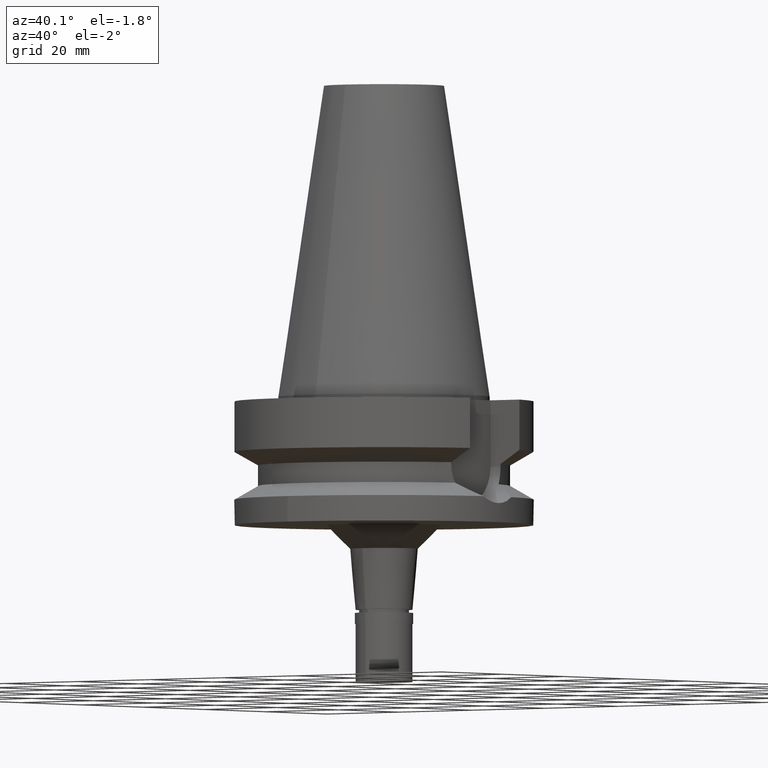
[diagram: clean part render]
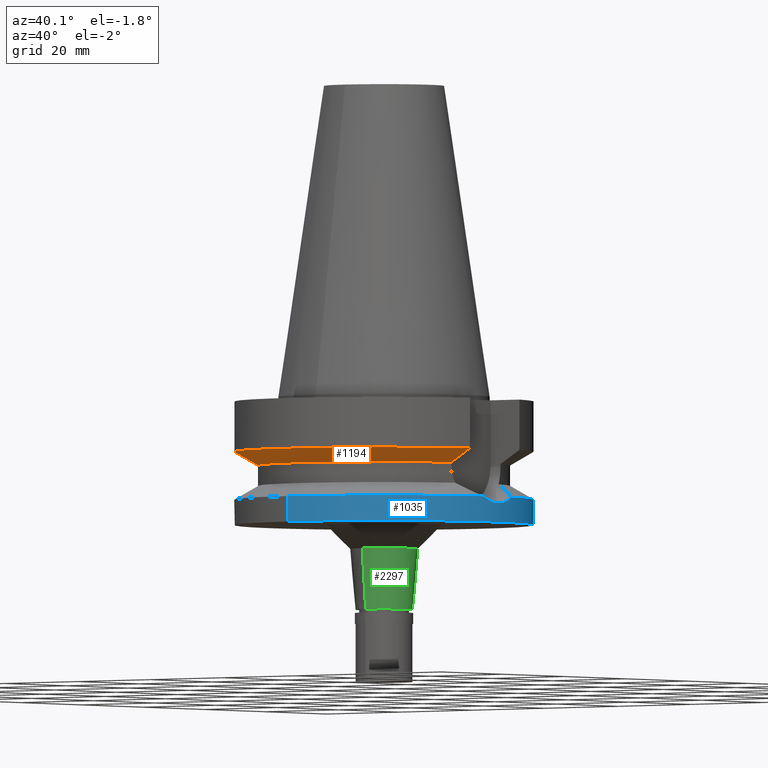
[diagram: same view with three faces highlighted in distinct colors, each labeled with its STEP entity id]
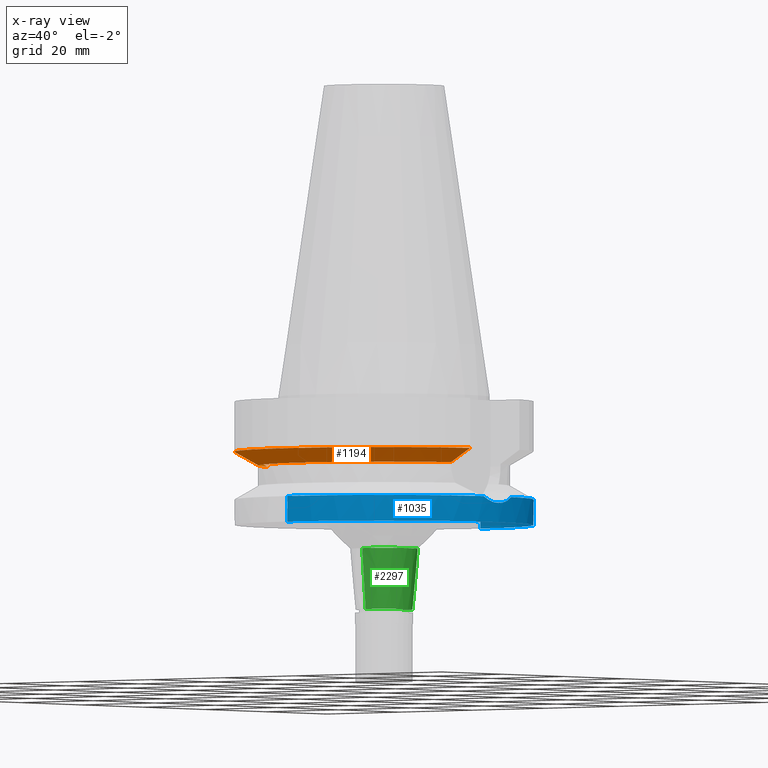
[diagram: x-ray of the same camera — body ghosted, the three highlighted faces saturated]
A machine part, auxiliary view with three faces highlighted in distinct colors.
The next image is the same camera in x-ray (body ghosted, the three faces saturated) — at least one of them is partly hidden behind the body in this view.
Their STEP definitions:

[orange] entity #1194 — the highlighted conical surface has half-angle 60 deg.
#55 = CARTESIAN_POINT ( 'NONE',  ( -30.45402291804999706, -8.049999261299999986, -11.56551230598000046 ) ) ;
#83 = ORIENTED_EDGE ( 'NONE', *, *, #1275, .T. ) ;
#178 = CARTESIAN_POINT ( 'NONE',  ( -26.83754566026498622, -8.049990730911906311, -13.57774917136192627 ) ) ;
#253 = B_SPLINE_CURVE_WITH_KNOTS ( 'NONE', 3,
 ( #1185, #2352, #2964, #1201 ),
 .UNSPECIFIED., .F., .F.,
 ( 4, 4 ),
 ( 0.0000000000000000000, 1.000000000000000000 ),
 .UNSPECIFIED. ) ;
#255 = EDGE_CURVE ( 'NONE', #1328, #1119, #950, .T. ) ;
#270 = DIRECTION ( 'NONE',  ( 0.0000000000000000000, -1.000000000000000000, 0.0000000000000000000 ) ) ;
#282 = EDGE_LOOP ( 'NONE', ( #1374, #2053, #83, #1912 ) ) ;
#369 = FACE_OUTER_BOUND ( 'NONE', #282, .T. ) ;
#393 = CARTESIAN_POINT ( 'NONE',  ( 25.24772266958000344, -8.050000000000000711, -14.45225699861000024 ) ) ;
#529 = B_SPLINE_CURVE_WITH_KNOTS ( 'NONE', 3,
 ( #2041, #1992, #178, #2263 ),
 .UNSPECIFIED., .F., .F.,
 ( 4, 4 ),
 ( 0.0000000000000000000, 1.000000000000000000 ),
 .UNSPECIFIED. ) ;
#541 = CARTESIAN_POINT ( 'NONE',  ( 0.0000000000000000000, 1.065333950388000029E-14, -14.45225699861000024 ) ) ;
#559 = EDGE_CURVE ( 'NONE', #1328, #2288, #529, .T. ) ;
#681 = EDGE_CURVE ( 'NONE', #744, #2288, #910, .T. ) ;
#721 = DIRECTION ( 'NONE',  ( 0.9527442516822307583, -0.3037735849057093818, 0.0000000000000000000 ) ) ;
#744 = VERTEX_POINT ( 'NONE', #393 ) ;
#774 = CARTESIAN_POINT ( 'NONE',  ( 0.0000000000000000000, 1.065333950388000029E-14, -11.56550565266999975 ) ) ;
#840 = DIRECTION ( 'NONE',  ( 0.0000000000000000000, 1.000000000000000000, 0.0000000000000000000 ) ) ;
#910 = CIRCLE ( 'NONE', #2635, 26.50000000000000711 ) ;
#950 = CIRCLE ( 'NONE', #1200, 31.50000000000000000 ) ;
#1119 = VERTEX_POINT ( 'NONE', #2343 ) ;
#1185 = CARTESIAN_POINT ( 'NONE',  ( 25.24772266958000344, -8.050000000000000711, -14.45225699861000024 ) ) ;
#1187 = CARTESIAN_POINT ( 'NONE',  ( -25.24772414562999856, -8.049995370583001630, -14.45229237342999973 ) ) ;
#1194 = ADVANCED_FACE ( 'NONE', ( #369 ), #2369, .T. ) ;
#1200 = AXIS2_PLACEMENT_3D ( 'NONE', #774, #1400, #270 ) ;
#1201 = CARTESIAN_POINT ( 'NONE',  ( 30.45402272279000044, -8.049999999999000622, -11.56550565266999975 ) ) ;
#1275 = EDGE_CURVE ( 'NONE', #744, #1119, #253, .T. ) ;
#1328 = VERTEX_POINT ( 'NONE', #55 ) ;
#1374 = ORIENTED_EDGE ( 'NONE', *, *, #559, .T. ) ;
#1400 = DIRECTION ( 'NONE',  ( 0.0000000000000000000, 0.0000000000000000000, 1.000000000000000000 ) ) ;
#1765 = AXIS2_PLACEMENT_3D ( 'NONE', #2701, #2243, #840 ) ;
#1912 = ORIENTED_EDGE ( 'NONE', *, *, #255, .F. ) ;
#1992 = CARTESIAN_POINT ( 'NONE',  ( -28.57292280874258950, -8.049998523565154329, -12.61549632925427034 ) ) ;
#2041 = CARTESIAN_POINT ( 'NONE',  ( -30.45402291804999706, -8.049999261299999986, -11.56551230598000046 ) ) ;
#2053 = ORIENTED_EDGE ( 'NONE', *, *, #681, .F. ) ;
#2167 = DIRECTION ( 'NONE',  ( 0.0000000000000000000, 0.0000000000000000000, -1.000000000000000000 ) ) ;
#2243 = DIRECTION ( 'NONE',  ( 0.0000000000000000000, 0.0000000000000000000, 1.000000000000000000 ) ) ;
#2263 = CARTESIAN_POINT ( 'NONE',  ( -25.24772414562999856, -8.049995370583001630, -14.45229237342999973 ) ) ;
#2288 = VERTEX_POINT ( 'NONE', #1187 ) ;
#2343 = CARTESIAN_POINT ( 'NONE',  ( 30.45402272279000044, -8.049999999999000622, -11.56550565266999975 ) ) ;
#2352 = CARTESIAN_POINT ( 'NONE',  ( 26.83757634323679042, -8.050003107898341170, -13.57773019121450631 ) ) ;
#2369 = CONICAL_SURFACE ( 'NONE', #1765, 29.00000000000000000, 1.047197551196400456 ) ;
#2635 = AXIS2_PLACEMENT_3D ( 'NONE', #541, #2167, #721 ) ;
#2701 = CARTESIAN_POINT ( 'NONE',  ( 0.0000000000000000000, 1.065333950388000029E-14, -13.00888132564000088 ) ) ;
#2964 = CARTESIAN_POINT ( 'NONE',  ( 28.57294857723054449, -8.050008340751910296, -12.61548041844505619 ) ) ;

[blue] entity #1035 — the highlighted cylindrical surface (partial cylindrical patch) has radius 31.5 mm, axis along (0, 0, -1).
#144 = CARTESIAN_POINT ( 'NONE',  ( 0.0000000000000000000, -31.50000000000000000, -21.63449434733000132 ) ) ;
#187 = CARTESIAN_POINT ( 'NONE',  ( 31.41965005813989009, 2.247072451018425898, -22.68008986004862138 ) ) ;
#204 = VERTEX_POINT ( 'NONE', #539 ) ;
#214 = CARTESIAN_POINT ( 'NONE',  ( 0.0000000000000000000, 2.099901866497999886E-14, 71.46999999999999886 ) ) ;
#235 = CARTESIAN_POINT ( 'NONE',  ( 0.0000000000000000000, 31.50000000000000000, -27.00000000000000000 ) ) ;
#313 = CARTESIAN_POINT ( 'NONE',  ( 31.37858089841856568, -2.761758702117613762, -22.51201130317851806 ) ) ;
#406 = CARTESIAN_POINT ( 'NONE',  ( 0.0000000000000000000, -31.50000000000000000, -21.63449434733000132 ) ) ;
#411 = CARTESIAN_POINT ( 'NONE',  ( 31.46212859131684780, 1.551903288874740383, -22.85152805526394815 ) ) ;
#450 = DIRECTION ( 'NONE',  ( 0.0000000000000000000, 0.0000000000000000000, -1.000000000000000000 ) ) ;
#480 = CYLINDRICAL_SURFACE ( 'NONE', #1528, 31.50000000000000000 ) ;
#513 = EDGE_CURVE ( 'NONE', #880, #204, #784, .T. ) ;
#514 = CARTESIAN_POINT ( 'NONE',  ( 31.33673720796014450, -3.204096053627186524, -22.33755622145905306 ) ) ;
#539 = CARTESIAN_POINT ( 'NONE',  ( 0.0000000000000000000, -31.50000000000000000, -27.00000000000000000 ) ) ;
#540 = CARTESIAN_POINT ( 'NONE',  ( 31.35452406600351694, -3.025350818075439818, -22.41224207192844275 ) ) ;
#623 = DIRECTION ( 'NONE',  ( 0.0000000000000000000, -1.000000000000000000, 0.0000000000000000000 ) ) ;
#631 = CARTESIAN_POINT ( 'NONE',  ( 31.47114559338427853, 1.356374569735863567, -22.88735630196625692 ) ) ;
#695 = AXIS2_PLACEMENT_3D ( 'NONE', #2298, #916, #623 ) ;
#784 = LINE ( 'NONE', #144, #2874 ) ;
#790 = CARTESIAN_POINT ( 'NONE',  ( 31.41252692553750947, -2.344406292690069282, -22.65106617466848604 ) ) ;
#880 = VERTEX_POINT ( 'NONE', #406 ) ;
#896 = ORIENTED_EDGE ( 'NONE', *, *, #1130, .T. ) ;
#916 = DIRECTION ( 'NONE',  ( 0.0000000000000000000, 0.0000000000000000000, 1.000000000000000000 ) ) ;
#938 = DIRECTION ( 'NONE',  ( 0.9898094849552905306, -0.1423979757318985240, 0.0000000000000000000 ) ) ;
#962 = ORIENTED_EDGE ( 'NONE', *, *, #513, .T. ) ;
#1022 = CARTESIAN_POINT ( 'NONE',  ( 31.38995345096358491, -2.631089867423071826, -22.55883192503551271 ) ) ;
#1035 = ADVANCED_FACE ( 'NONE', ( #1587 ), #480, .T. ) ;
#1055 = CARTESIAN_POINT ( 'NONE',  ( 0.0000000000000000000, 31.50000000000000000, -21.63449434733000132 ) ) ;
#1100 = EDGE_LOOP ( 'NONE', ( #2931, #962, #1352, #1687, #896, #1714, #2764 ) ) ;
#1106 = CARTESIAN_POINT ( 'NONE',  ( 31.41700835831544936, 2.283543664073631518, -22.66933216881746205 ) ) ;
#1121 = CARTESIAN_POINT ( 'NONE',  ( 31.44589798759551158, 1.844932280118189549, -22.78637270925227298 ) ) ;
#1130 = EDGE_CURVE ( 'NONE', #2012, #2084, #1965, .T. ) ;
#1151 = CARTESIAN_POINT ( 'NONE',  ( 31.36328283769280389, 3.007832627802771164, -22.45025453296482709 ) ) ;
#1167 = CARTESIAN_POINT ( 'NONE',  ( 31.41523313603342160, 2.307851765015190182, -22.66209965113178626 ) ) ;
#1178 = EDGE_CURVE ( 'NONE', #2012, #1300, #2228, .T. ) ;
#1226 = CARTESIAN_POINT ( 'NONE',  ( 31.17899877608999759, -4.485536235554000051, -21.63449434733000132 ) ) ;
#1230 = DIRECTION ( 'NONE',  ( 0.0000000000000000000, 1.000000000000000000, 0.0000000000000000000 ) ) ;
#1252 = CARTESIAN_POINT ( 'NONE',  ( 0.0000000000000000000, 31.50000000000000000, -21.63449434733000132 ) ) ;
#1300 = VERTEX_POINT ( 'NONE', #235 ) ;
#1313 = CARTESIAN_POINT ( 'NONE',  ( 31.50000000000000000, 0.0000000000000000000, -23.00000000000000000 ) ) ;
#1352 = ORIENTED_EDGE ( 'NONE', *, *, #2572, .T. ) ;
#1357 = EDGE_CURVE ( 'NONE', #1953, #880, #2639, .T. ) ;
#1402 = EDGE_CURVE ( 'NONE', #1953, #2960, #2033, .T. ) ;
#1428 = CARTESIAN_POINT ( 'NONE',  ( 31.40784683545096811, -2.406367877101608599, -22.63197619219696577 ) ) ;
#1440 = AXIS2_PLACEMENT_3D ( 'NONE', #2052, #2519, #938 ) ;
#1466 = CARTESIAN_POINT ( 'NONE',  ( 31.50000000000000000, 0.0000000000000000000, -23.00000000000000000 ) ) ;
#1528 = AXIS2_PLACEMENT_3D ( 'NONE', #214, #450, #1602 ) ;
#1548 = CARTESIAN_POINT ( 'NONE',  ( 31.43710641057977639, 1.991379779409220951, -22.75094280106119271 ) ) ;
#1587 = FACE_OUTER_BOUND ( 'NONE', #1100, .T. ) ;
#1602 = DIRECTION ( 'NONE',  ( 0.0000000000000000000, -1.000000000000000000, 0.0000000000000000000 ) ) ;
#1627 = CARTESIAN_POINT ( 'NONE',  ( 31.17899877608999759, 4.485536235554000051, -21.63449434733000132 ) ) ;
#1632 = AXIS2_PLACEMENT_3D ( 'NONE', #1917, #1713, #1230 ) ;
#1659 = CARTESIAN_POINT ( 'NONE',  ( 31.23206218984336502, -4.116692015940128790, -21.88200209083436576 ) ) ;
#1662 = EDGE_CURVE ( 'NONE', #2960, #2084, #2860, .T. ) ;
#1687 = ORIENTED_EDGE ( 'NONE', *, *, #1178, .F. ) ;
#1700 = CARTESIAN_POINT ( 'NONE',  ( 31.50000000000000000, 0.0000000000000000000, -23.00000000000000000 ) ) ;
#1713 = DIRECTION ( 'NONE',  ( 0.0000000000000000000, 0.0000000000000000000, -1.000000000000000000 ) ) ;
#1714 = ORIENTED_EDGE ( 'NONE', *, *, #1662, .F. ) ;
#1771 = CARTESIAN_POINT ( 'NONE',  ( 31.49278639834606608, 0.7710438189600496983, -22.97268655628534262 ) ) ;
#1917 = CARTESIAN_POINT ( 'NONE',  ( 0.0000000000000000000, 0.0000000000000000000, -21.63449434733000132 ) ) ;
#1930 = CARTESIAN_POINT ( 'NONE',  ( 31.17899877608999759, -4.485536235554000051, -21.63449434733000132 ) ) ;
#1940 = CARTESIAN_POINT ( 'NONE',  ( 31.41025956305871958, -2.374562904747773651, -22.64181861954700281 ) ) ;
#1953 = VERTEX_POINT ( 'NONE', #1930 ) ;
#1965 = CIRCLE ( 'NONE', #1632, 31.50000000000000000 ) ;
#1974 = DIRECTION ( 'NONE',  ( 0.0000000000000000000, 1.099151708819000049E-13, -1.000000000000000000 ) ) ;
#2012 = VERTEX_POINT ( 'NONE', #1252 ) ;
#2033 = B_SPLINE_CURVE_WITH_KNOTS ( 'NONE', 3,
 ( #1226, #1659, #2191, #514, #540, #313, #1022, #2165, #1428, #1940, #2861, #790, #2365, #2415, #1700 ),
 .UNSPECIFIED., .F., .F.,
 ( 4, 2, 2, 1, 1, 1, 2, 2, 4 ),
 ( 0.0000000000000000000, 0.2499999999999942268, 0.3749999999999910072, 0.4374999999999890088, 0.4687499999999880651, 0.4843749999999876765, 0.4921874999999872324, 0.4999999999999868439, 1.000000000000000000 ),
 .UNSPECIFIED. ) ;
#2037 = CARTESIAN_POINT ( 'NONE',  ( 31.42566608920673588, 2.161912855736499939, -22.70455434720136623 ) ) ;
#2052 = CARTESIAN_POINT ( 'NONE',  ( 0.0000000000000000000, 0.0000000000000000000, -21.63449434733000132 ) ) ;
#2084 = VERTEX_POINT ( 'NONE', #2206 ) ;
#2088 = CARTESIAN_POINT ( 'NONE',  ( 31.28513683633853049, 3.747769717412402279, -22.12956222809605578 ) ) ;
#2165 = CARTESIAN_POINT ( 'NONE',  ( 31.40207366752338558, -2.480881880697971553, -22.60840943195238140 ) ) ;
#2191 = CARTESIAN_POINT ( 'NONE',  ( 31.27812972453008200, -3.746556055127673979, -22.08615383173153646 ) ) ;
#2198 = DIRECTION ( 'NONE',  ( 0.0000000000000000000, -1.105773104655000034E-13, -1.000000000000000000 ) ) ;
#2206 = CARTESIAN_POINT ( 'NONE',  ( 31.17899877608999759, 4.485536235554000051, -21.63449434733000132 ) ) ;
#2228 = LINE ( 'NONE', #1055, #2408 ) ;
#2271 = CARTESIAN_POINT ( 'NONE',  ( 31.50000000000000000, 0.3825415459098359117, -23.00000000000000355 ) ) ;
#2298 = CARTESIAN_POINT ( 'NONE',  ( 0.0000000000000000000, 2.099901866497999886E-14, -27.00000000000000000 ) ) ;
#2365 = CARTESIAN_POINT ( 'NONE',  ( 31.47114290327009911, -1.554796712081099930, -22.89008433903540052 ) ) ;
#2408 = VECTOR ( 'NONE', #1974, 1000.000000000000000 ) ;
#2415 = CARTESIAN_POINT ( 'NONE',  ( 31.50000000000000000, -0.7651554501429831401, -22.99999999999999645 ) ) ;
#2518 = CARTESIAN_POINT ( 'NONE',  ( 31.41422043550374354, 2.321593114324950413, -22.65797165829933846 ) ) ;
#2519 = DIRECTION ( 'NONE',  ( 0.0000000000000000000, 0.0000000000000000000, -1.000000000000000000 ) ) ;
#2572 = EDGE_CURVE ( 'NONE', #204, #1300, #2864, .T. ) ;
#2639 = CIRCLE ( 'NONE', #1440, 31.50000000000001421 ) ;
#2764 = ORIENTED_EDGE ( 'NONE', *, *, #1402, .F. ) ;
#2860 = B_SPLINE_CURVE_WITH_KNOTS ( 'NONE', 3,
 ( #1313, #2271, #1771, #631, #411, #1121, #1548, #2037, #187, #1106, #1167, #2518, #1151, #2088, #1627 ),
 .UNSPECIFIED., .F., .F.,
 ( 4, 2, 2, 1, 1, 1, 2, 2, 4 ),
 ( 0.0000000000000000000, 0.2499999999999890643, 0.3749999999999835687, 0.4374999999999809597, 0.4687499999999800160, 0.4843749999999797939, 0.4921874999999797384, 0.4999999999999796829, 1.000000000000000000 ),
 .UNSPECIFIED. ) ;
#2861 = CARTESIAN_POINT ( 'NONE',  ( 31.41185438430423105, -2.353388734668491633, -22.64832346216689984 ) ) ;
#2864 = CIRCLE ( 'NONE', #695, 31.50000000000000000 ) ;
#2874 = VECTOR ( 'NONE', #2198, 1000.000000000000000 ) ;
#2931 = ORIENTED_EDGE ( 'NONE', *, *, #1357, .T. ) ;
#2960 = VERTEX_POINT ( 'NONE', #1466 ) ;

[green] entity #2297 — the highlighted conical surface has half-angle 5 deg.
#32 = DIRECTION ( 'NONE',  ( 0.0000000000000000000, -0.08715574274766389740, -0.9961946980917451011 ) ) ;
#59 = DIRECTION ( 'NONE',  ( 0.0000000000000000000, 1.000000000000000000, 0.0000000000000000000 ) ) ;
#62 = DIRECTION ( 'NONE',  ( 0.0000000000000000000, 0.08715574274766389740, -0.9961946980917451011 ) ) ;
#175 = CONICAL_SURFACE ( 'NONE', #1948, 6.559927446566000242, 0.08726646259969973729 ) ;
#203 = DIRECTION ( 'NONE',  ( 0.0000000000000000000, -1.000000000000000000, 0.0000000000000000000 ) ) ;
#215 = ORIENTED_EDGE ( 'NONE', *, *, #1793, .F. ) ;
#218 = CARTESIAN_POINT ( 'NONE',  ( 0.0000000000000000000, 0.0000000000000000000, -44.79999999999999716 ) ) ;
#252 = EDGE_LOOP ( 'NONE', ( #215, #2948, #355, #2282 ) ) ;
#277 = DIRECTION ( 'NONE',  ( 0.0000000000000000000, -1.000000000000000000, 0.0000000000000000000 ) ) ;
#288 = DIRECTION ( 'NONE',  ( 0.0000000000000000000, 0.0000000000000000000, 1.000000000000000000 ) ) ;
#355 = ORIENTED_EDGE ( 'NONE', *, *, #1567, .T. ) ;
#509 = LINE ( 'NONE', #1458, #943 ) ;
#566 = VERTEX_POINT ( 'NONE', #846 ) ;
#670 = LINE ( 'NONE', #2127, #2693 ) ;
#720 = VERTEX_POINT ( 'NONE', #1470 ) ;
#741 = VERTEX_POINT ( 'NONE', #1971 ) ;
#809 = CIRCLE ( 'NONE', #1009, 6.000000000000000000 ) ;
#813 = AXIS2_PLACEMENT_3D ( 'NONE', #2326, #288, #277 ) ;
#846 = CARTESIAN_POINT ( 'NONE',  ( 0.0000000000000000000, 6.000000000000000000, -44.79999999999999716 ) ) ;
#877 = DIRECTION ( 'NONE',  ( 0.0000000000000000000, 0.0000000000000000000, 1.000000000000000000 ) ) ;
#903 = VERTEX_POINT ( 'NONE', #1082 ) ;
#943 = VECTOR ( 'NONE', #32, 1000.000000000000114 ) ;
#1009 = AXIS2_PLACEMENT_3D ( 'NONE', #218, #877, #203 ) ;
#1082 = CARTESIAN_POINT ( 'NONE',  ( 0.0000000000000000000, -6.000000000000000000, -44.79999999999999716 ) ) ;
#1202 = FACE_OUTER_BOUND ( 'NONE', #252, .T. ) ;
#1301 = CIRCLE ( 'NONE', #813, 7.119854893131999596 ) ;
#1458 = CARTESIAN_POINT ( 'NONE',  ( 0.0000000000000000000, 7.119854893131999596, -32.00000000000000000 ) ) ;
#1470 = CARTESIAN_POINT ( 'NONE',  ( 0.0000000000000000000, -7.119854893131999596, -32.00000000000000000 ) ) ;
#1567 = EDGE_CURVE ( 'NONE', #903, #566, #809, .T. ) ;
#1746 = EDGE_CURVE ( 'NONE', #720, #903, #670, .T. ) ;
#1793 = EDGE_CURVE ( 'NONE', #720, #741, #1301, .T. ) ;
#1948 = AXIS2_PLACEMENT_3D ( 'NONE', #2124, #2765, #59 ) ;
#1971 = CARTESIAN_POINT ( 'NONE',  ( 0.0000000000000000000, 7.119854893131999596, -32.00000000000000000 ) ) ;
#2124 = CARTESIAN_POINT ( 'NONE',  ( 0.0000000000000000000, 0.0000000000000000000, -38.39999999999999858 ) ) ;
#2127 = CARTESIAN_POINT ( 'NONE',  ( 0.0000000000000000000, -7.119854893131999596, -32.00000000000000000 ) ) ;
#2282 = ORIENTED_EDGE ( 'NONE', *, *, #2769, .F. ) ;
#2297 = ADVANCED_FACE ( 'NONE', ( #1202 ), #175, .T. ) ;
#2326 = CARTESIAN_POINT ( 'NONE',  ( 0.0000000000000000000, 0.0000000000000000000, -32.00000000000000000 ) ) ;
#2693 = VECTOR ( 'NONE', #62, 1000.000000000000114 ) ;
#2765 = DIRECTION ( 'NONE',  ( 0.0000000000000000000, 0.0000000000000000000, 1.000000000000000000 ) ) ;
#2769 = EDGE_CURVE ( 'NONE', #741, #566, #509, .T. ) ;
#2948 = ORIENTED_EDGE ( 'NONE', *, *, #1746, .T. ) ;